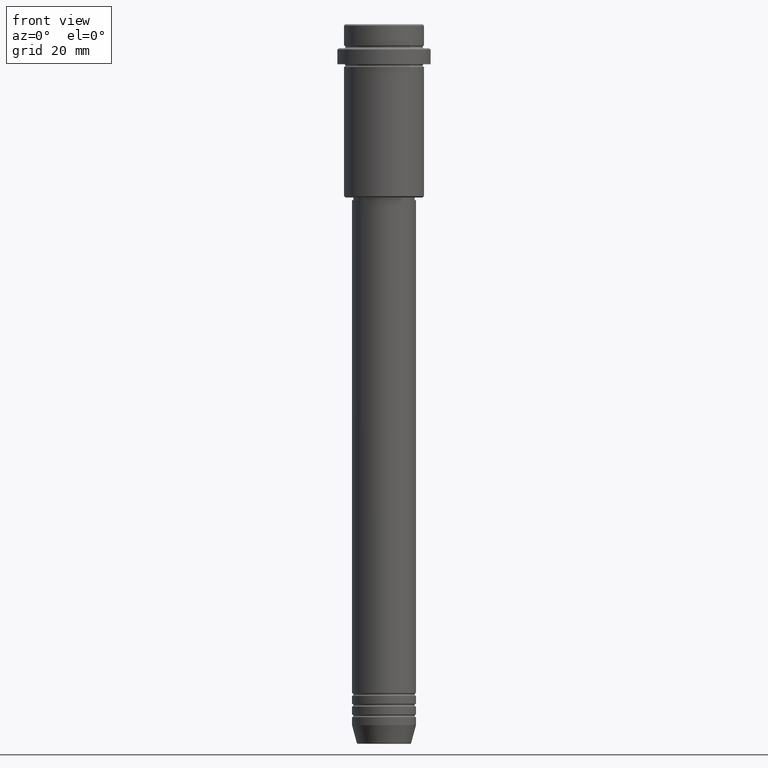
[diagram: clean part render]
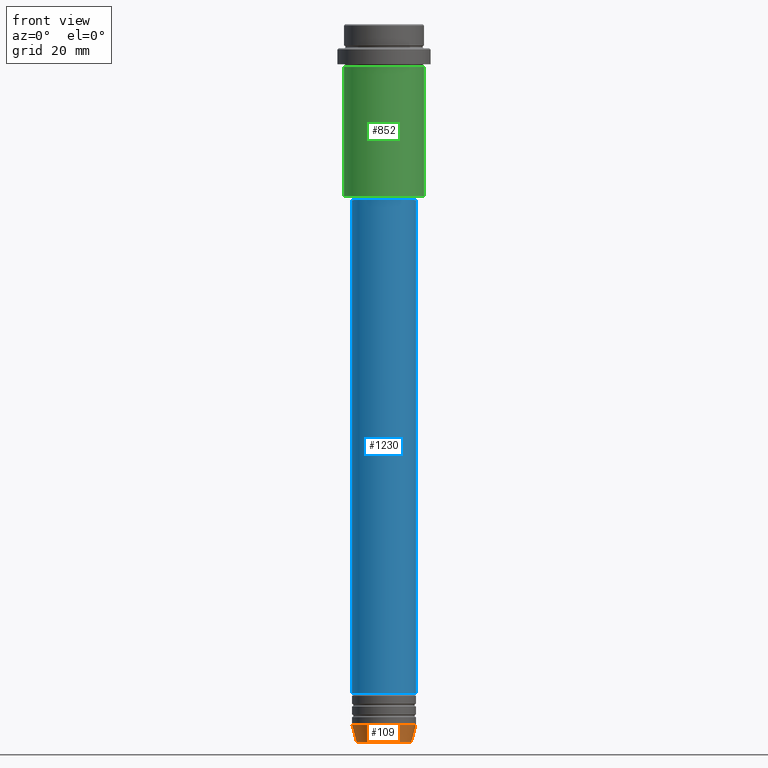
[diagram: same view with three faces highlighted in distinct colors, each labeled with its STEP entity id]
A machine part, front view with three faces highlighted in distinct colors.
Their STEP definitions:

[orange] entity #109 — the highlighted conical surface has half-angle 15 deg.
#89 = EDGE_LOOP ( 'NONE', ( #561, #1270, #575, #502 ) ) ;
#104 = LINE ( 'NONE', #1405, #982 ) ;
#109 = ADVANCED_FACE ( 'NONE', ( #1347 ), #187, .T. ) ;
#137 = DIRECTION ( 'NONE',  ( -0.000000000000000000, -0.000000000000000000, 1.000000000000000000 ) ) ;
#187 = CONICAL_SURFACE ( 'NONE', #314, 12.00000000000000000, 0.2617993877991500740 ) ;
#205 = CARTESIAN_POINT ( 'NONE',  ( -10.22365507213719127, 1.360806402472382744E-15, -269.6294095225512706 ) ) ;
#227 = DIRECTION ( 'NONE',  ( 1.000000000000000000, 0.000000000000000000, 0.000000000000000000 ) ) ;
#254 = CARTESIAN_POINT ( 'NONE',  ( 10.22365507213719127, 0.000000000000000000, -269.6294095225512706 ) ) ;
#310 = CARTESIAN_POINT ( 'NONE',  ( 12.00000000000000000, 0.000000000000000000, -263.0000000000000000 ) ) ;
#314 = AXIS2_PLACEMENT_3D ( 'NONE', #665, #137, #1015 ) ;
#437 = DIRECTION ( 'NONE',  ( -0.2588190451025213501, 3.169619151431772337E-17, 0.9659258262890680902 ) ) ;
#502 = ORIENTED_EDGE ( 'NONE', *, *, #1141, .F. ) ;
#514 = DIRECTION ( 'NONE',  ( 1.000000000000000000, 0.000000000000000000, 0.000000000000000000 ) ) ;
#561 = ORIENTED_EDGE ( 'NONE', *, *, #1370, .F. ) ;
#572 = EDGE_CURVE ( 'NONE', #1145, #1010, #1365, .T. ) ;
#575 = ORIENTED_EDGE ( 'NONE', *, *, #1203, .T. ) ;
#665 = CARTESIAN_POINT ( 'NONE',  ( 0.000000000000000000, 0.000000000000000000, -263.0000000000000000 ) ) ;
#841 = AXIS2_PLACEMENT_3D ( 'NONE', #1184, #1376, #514 ) ;
#959 = CIRCLE ( 'NONE', #841, 12.00000000000000000 ) ;
#974 = CARTESIAN_POINT ( 'NONE',  ( 0.000000000000000000, 0.000000000000000000, -269.6294095225512706 ) ) ;
#982 = VECTOR ( 'NONE', #437, 1000.000000000000000 ) ;
#1010 = VERTEX_POINT ( 'NONE', #254 ) ;
#1015 = DIRECTION ( 'NONE',  ( 1.000000000000000000, 0.000000000000000000, 0.000000000000000000 ) ) ;
#1032 = CARTESIAN_POINT ( 'NONE',  ( -12.00000000000000000, 1.469576158976823947E-15, -263.0000000000000000 ) ) ;
#1033 = VERTEX_POINT ( 'NONE', #1126 ) ;
#1055 = LINE ( 'NONE', #310, #1323 ) ;
#1106 = VERTEX_POINT ( 'NONE', #1032 ) ;
#1126 = CARTESIAN_POINT ( 'NONE',  ( 12.00000000000000000, 0.000000000000000000, -263.0000000000000000 ) ) ;
#1141 = EDGE_CURVE ( 'NONE', #1106, #1033, #959, .T. ) ;
#1145 = VERTEX_POINT ( 'NONE', #205 ) ;
#1167 = DIRECTION ( 'NONE',  ( 0.2588190451025213501, 0.000000000000000000, 0.9659258262890680902 ) ) ;
#1184 = CARTESIAN_POINT ( 'NONE',  ( 0.000000000000000000, 0.000000000000000000, -263.0000000000000000 ) ) ;
#1198 = DIRECTION ( 'NONE',  ( -0.000000000000000000, -0.000000000000000000, 1.000000000000000000 ) ) ;
#1203 = EDGE_CURVE ( 'NONE', #1010, #1033, #1055, .T. ) ;
#1270 = ORIENTED_EDGE ( 'NONE', *, *, #572, .T. ) ;
#1284 = AXIS2_PLACEMENT_3D ( 'NONE', #974, #1198, #227 ) ;
#1323 = VECTOR ( 'NONE', #1167, 1000.000000000000000 ) ;
#1347 = FACE_OUTER_BOUND ( 'NONE', #89, .T. ) ;
#1365 = CIRCLE ( 'NONE', #1284, 10.22365507213719127 ) ;
#1370 = EDGE_CURVE ( 'NONE', #1145, #1106, #104, .T. ) ;
#1376 = DIRECTION ( 'NONE',  ( -0.000000000000000000, -0.000000000000000000, 1.000000000000000000 ) ) ;
#1405 = CARTESIAN_POINT ( 'NONE',  ( -12.00000000000000000, 1.469576158976823947E-15, -263.0000000000000000 ) ) ;

[blue] entity #1230 — the highlighted cylindrical surface (edge-blend (fillet) strip) has radius 12 mm, axis along (-0, -0, 1).
#87 = CARTESIAN_POINT ( 'NONE',  ( 12.00000000000000000, 0.000000000000000000, 0.000000000000000000 ) ) ;
#162 = CARTESIAN_POINT ( 'NONE',  ( -12.00000000000000000, 1.469576158976823947E-15, -250.9999999999998863 ) ) ;
#238 = ORIENTED_EDGE ( 'NONE', *, *, #1124, .F. ) ;
#266 = ORIENTED_EDGE ( 'NONE', *, *, #952, .T. ) ;
#274 = VERTEX_POINT ( 'NONE', #162 ) ;
#287 = CARTESIAN_POINT ( 'NONE',  ( 12.00000000000000000, 0.000000000000000000, -250.9999999999998863 ) ) ;
#306 = ORIENTED_EDGE ( 'NONE', *, *, #517, .T. ) ;
#331 = EDGE_CURVE ( 'NONE', #274, #897, #1225, .T. ) ;
#368 = VERTEX_POINT ( 'NONE', #287 ) ;
#375 = AXIS2_PLACEMENT_3D ( 'NONE', #1306, #966, #461 ) ;
#403 = DIRECTION ( 'NONE',  ( -0.000000000000000000, -0.000000000000000000, 1.000000000000000000 ) ) ;
#420 = CIRCLE ( 'NONE', #375, 12.00000000000000000 ) ;
#461 = DIRECTION ( 'NONE',  ( 1.000000000000000000, 0.000000000000000000, 0.000000000000000000 ) ) ;
#517 = EDGE_CURVE ( 'NONE', #368, #758, #633, .T. ) ;
#633 = LINE ( 'NONE', #87, #747 ) ;
#703 = CARTESIAN_POINT ( 'NONE',  ( 11.99999999999999822, 0.000000000000000000, -66.00000000000000000 ) ) ;
#713 = CARTESIAN_POINT ( 'NONE',  ( -12.00000000000000000, 1.469576158976823947E-15, 0.000000000000000000 ) ) ;
#735 = FACE_OUTER_BOUND ( 'NONE', #790, .T. ) ;
#747 = VECTOR ( 'NONE', #1389, 1000.000000000000000 ) ;
#749 = AXIS2_PLACEMENT_3D ( 'NONE', #853, #1280, #750 ) ;
#750 = DIRECTION ( 'NONE',  ( 1.000000000000000000, 0.000000000000000000, 0.000000000000000000 ) ) ;
#758 = VERTEX_POINT ( 'NONE', #703 ) ;
#790 = EDGE_LOOP ( 'NONE', ( #1170, #266, #306, #238 ) ) ;
#853 = CARTESIAN_POINT ( 'NONE',  ( 0.000000000000000000, 0.000000000000000000, 0.000000000000000000 ) ) ;
#857 = VECTOR ( 'NONE', #1008, 1000.000000000000000 ) ;
#897 = VERTEX_POINT ( 'NONE', #1139 ) ;
#952 = EDGE_CURVE ( 'NONE', #274, #368, #420, .T. ) ;
#966 = DIRECTION ( 'NONE',  ( -0.000000000000000000, -0.000000000000000000, 1.000000000000000000 ) ) ;
#1008 = DIRECTION ( 'NONE',  ( -0.000000000000000000, -0.000000000000000000, 1.000000000000000000 ) ) ;
#1068 = DIRECTION ( 'NONE',  ( 1.000000000000000000, 0.000000000000000000, 0.000000000000000000 ) ) ;
#1082 = CIRCLE ( 'NONE', #1197, 11.99999999999999822 ) ;
#1124 = EDGE_CURVE ( 'NONE', #897, #758, #1082, .T. ) ;
#1139 = CARTESIAN_POINT ( 'NONE',  ( -11.99999999999999822, 1.469576158976823750E-15, -66.00000000000000000 ) ) ;
#1170 = ORIENTED_EDGE ( 'NONE', *, *, #331, .F. ) ;
#1197 = AXIS2_PLACEMENT_3D ( 'NONE', #1263, #403, #1068 ) ;
#1225 = LINE ( 'NONE', #713, #857 ) ;
#1230 = ADVANCED_FACE ( 'NONE', ( #735 ), #1381, .T. ) ;
#1263 = CARTESIAN_POINT ( 'NONE',  ( 0.000000000000000000, 0.000000000000000000, -66.00000000000000000 ) ) ;
#1280 = DIRECTION ( 'NONE',  ( -0.000000000000000000, -0.000000000000000000, 1.000000000000000000 ) ) ;
#1306 = CARTESIAN_POINT ( 'NONE',  ( 0.000000000000000000, 0.000000000000000000, -250.9999999999998863 ) ) ;
#1381 = CYLINDRICAL_SURFACE ( 'NONE', #749, 12.00000000000000000 ) ;
#1389 = DIRECTION ( 'NONE',  ( -0.000000000000000000, -0.000000000000000000, 1.000000000000000000 ) ) ;

[green] entity #852 — the highlighted cylindrical surface (partial cylindrical patch) has radius 15 mm, axis along (-0, -0, 1).
#15 = DIRECTION ( 'NONE',  ( -0.000000000000000000, -0.000000000000000000, 1.000000000000000000 ) ) ;
#107 = CYLINDRICAL_SURFACE ( 'NONE', #813, 15.00000000000000000 ) ;
#111 = CARTESIAN_POINT ( 'NONE',  ( 0.000000000000000000, 0.000000000000000000, 0.000000000000000000 ) ) ;
#113 = CIRCLE ( 'NONE', #1344, 15.00000000000000178 ) ;
#120 = ORIENTED_EDGE ( 'NONE', *, *, #917, .T. ) ;
#164 = VECTOR ( 'NONE', #179, 1000.000000000000000 ) ;
#179 = DIRECTION ( 'NONE',  ( -0.000000000000000000, -0.000000000000000000, 1.000000000000000000 ) ) ;
#201 = EDGE_CURVE ( 'NONE', #382, #262, #113, .T. ) ;
#262 = VERTEX_POINT ( 'NONE', #590 ) ;
#286 = DIRECTION ( 'NONE',  ( -0.000000000000000000, -0.000000000000000000, 1.000000000000000000 ) ) ;
#299 = LINE ( 'NONE', #731, #164 ) ;
#326 = DIRECTION ( 'NONE',  ( -0.000000000000000000, -0.000000000000000000, 1.000000000000000000 ) ) ;
#382 = VERTEX_POINT ( 'NONE', #602 ) ;
#417 = CARTESIAN_POINT ( 'NONE',  ( -15.00000000000000000, 1.836970198721029589E-15, -64.49999999999998579 ) ) ;
#428 = EDGE_CURVE ( 'NONE', #1211, #262, #299, .T. ) ;
#519 = VERTEX_POINT ( 'NONE', #417 ) ;
#548 = DIRECTION ( 'NONE',  ( 1.000000000000000000, 0.000000000000000000, 0.000000000000000000 ) ) ;
#589 = ORIENTED_EDGE ( 'NONE', *, *, #428, .T. ) ;
#590 = CARTESIAN_POINT ( 'NONE',  ( 15.00000000000000178, 0.000000000000000000, -16.00000000000000000 ) ) ;
#593 = DIRECTION ( 'NONE',  ( -0.000000000000000000, -0.000000000000000000, 1.000000000000000000 ) ) ;
#602 = CARTESIAN_POINT ( 'NONE',  ( -15.00000000000000355, 1.836970198721029983E-15, -16.00000000000000000 ) ) ;
#625 = AXIS2_PLACEMENT_3D ( 'NONE', #831, #593, #1260 ) ;
#651 = VECTOR ( 'NONE', #286, 1000.000000000000000 ) ;
#654 = CARTESIAN_POINT ( 'NONE',  ( 0.000000000000000000, 0.000000000000000000, -16.00000000000000000 ) ) ;
#694 = CIRCLE ( 'NONE', #625, 15.00000000000000000 ) ;
#702 = ORIENTED_EDGE ( 'NONE', *, *, #1070, .F. ) ;
#720 = CARTESIAN_POINT ( 'NONE',  ( -15.00000000000000000, 1.836970198721029589E-15, 0.000000000000000000 ) ) ;
#731 = CARTESIAN_POINT ( 'NONE',  ( 15.00000000000000000, 0.000000000000000000, 0.000000000000000000 ) ) ;
#813 = AXIS2_PLACEMENT_3D ( 'NONE', #111, #326, #548 ) ;
#829 = LINE ( 'NONE', #720, #651 ) ;
#831 = CARTESIAN_POINT ( 'NONE',  ( 0.000000000000000000, 0.000000000000000000, -64.49999999999998579 ) ) ;
#842 = CARTESIAN_POINT ( 'NONE',  ( 15.00000000000000000, 0.000000000000000000, -64.49999999999998579 ) ) ;
#852 = ADVANCED_FACE ( 'NONE', ( #990 ), #107, .T. ) ;
#917 = EDGE_CURVE ( 'NONE', #519, #1211, #694, .T. ) ;
#990 = FACE_OUTER_BOUND ( 'NONE', #1035, .T. ) ;
#1035 = EDGE_LOOP ( 'NONE', ( #702, #120, #589, #1388 ) ) ;
#1070 = EDGE_CURVE ( 'NONE', #519, #382, #829, .T. ) ;
#1211 = VERTEX_POINT ( 'NONE', #842 ) ;
#1260 = DIRECTION ( 'NONE',  ( -1.000000000000000000, 0.000000000000000000, 0.000000000000000000 ) ) ;
#1342 = DIRECTION ( 'NONE',  ( 1.000000000000000000, 0.000000000000000000, 0.000000000000000000 ) ) ;
#1344 = AXIS2_PLACEMENT_3D ( 'NONE', #654, #15, #1342 ) ;
#1388 = ORIENTED_EDGE ( 'NONE', *, *, #201, .F. ) ;